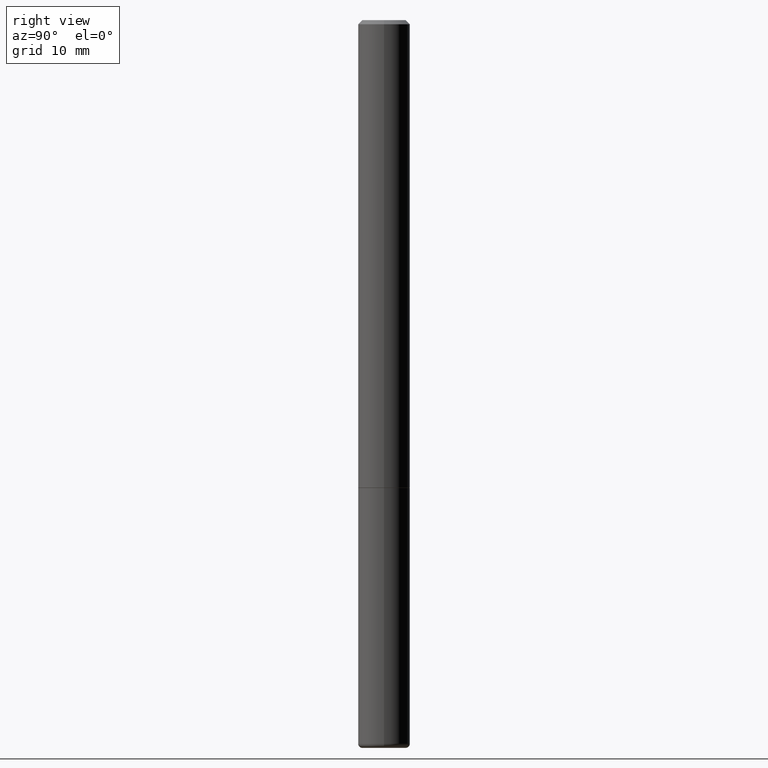
[diagram: clean part render]
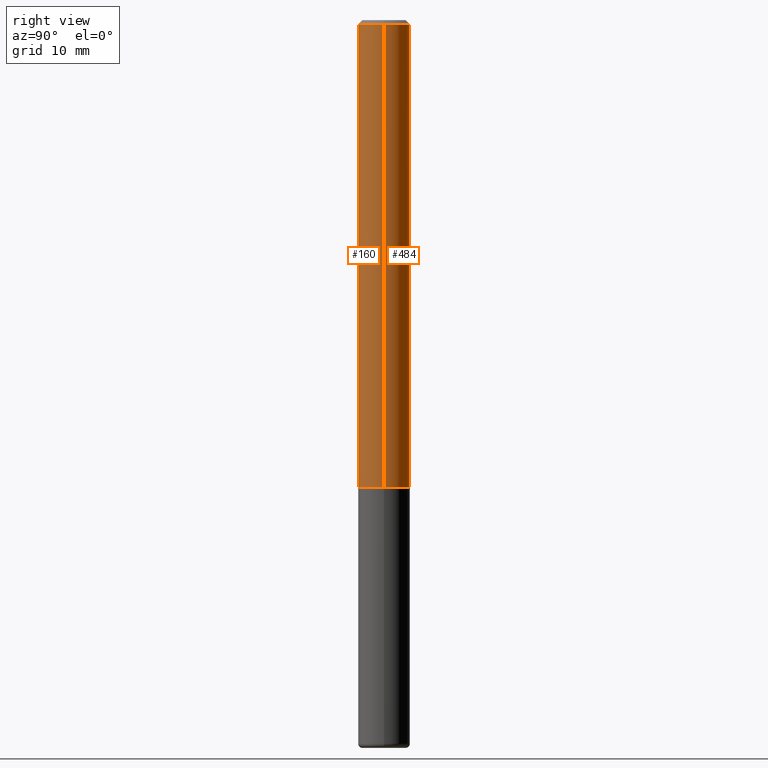
[diagram: same view with one multi-face feature highlighted, each face labeled with its STEP entity id]
A machine part, right view. The highlighted faces form ONE feature: a constant-radius fillet chain: 2 tangent blend faces with common blend radius 3.175 mm. The faces share edges in the B-rep.
Their STEP definitions:
[1] entity #160 (Cylinder):
#16 = EDGE_LOOP ( 'NONE', ( #41, #174, #159, #275 ) ) ;
#24 = VECTOR ( 'NONE', #490, 39.37007874015748143 ) ;
#32 = CIRCLE ( 'NONE', #72, 0.1250000000000000278 ) ;
#41 = ORIENTED_EDGE ( 'NONE', *, *, #77, .F. ) ;
#59 = CARTESIAN_POINT ( 'NONE',  ( -0.1250000000000000278, -3.072907159217412699E-15, -2.248999999999999222 ) ) ;
#72 = AXIS2_PLACEMENT_3D ( 'NONE', #449, #444, #331 ) ;
#76 = DIRECTION ( 'NONE',  ( 1.000000000000000000, -6.982962677686265922E-15, 0.000000000000000000 ) ) ;
#77 = EDGE_CURVE ( 'NONE', #354, #139, #334, .T. ) ;
#82 = CIRCLE ( 'NONE', #213, 0.1249999999999993477 ) ;
#91 = VECTOR ( 'NONE', #223, 39.37007874015748143 ) ;
#109 = DIRECTION ( 'NONE',  ( 1.000000000000000000, -6.982962677686266711E-15, 4.876176775795935793E-29 ) ) ;
#139 = VERTEX_POINT ( 'NONE', #291 ) ;
#142 = CYLINDRICAL_SURFACE ( 'NONE', #471, 0.1249999999999996947 ) ;
#159 = ORIENTED_EDGE ( 'NONE', *, *, #188, .T. ) ;
#160 = ADVANCED_FACE ( 'NONE', ( #332 ), #142, .T. ) ;
#168 = VERTEX_POINT ( 'NONE', #264 ) ;
#174 = ORIENTED_EDGE ( 'NONE', *, *, #378, .T. ) ;
#188 = EDGE_CURVE ( 'NONE', #168, #194, #424, .T. ) ;
#194 = VERTEX_POINT ( 'NONE', #270 ) ;
#213 = AXIS2_PLACEMENT_3D ( 'NONE', #385, #347, #76 ) ;
#223 = DIRECTION ( 'NONE',  ( -2.445468806185136877E-29, 3.491481338843145188E-15, 1.000000000000000000 ) ) ;
#264 = CARTESIAN_POINT ( 'NONE',  ( 0.1250000000000000278, -8.725211865769015625E-15, -2.248999999999999222 ) ) ;
#270 = CARTESIAN_POINT ( 'NONE',  ( 0.1249999999999993477, -9.273918764983004048E-16, -0.02000000000000014266 ) ) ;
#275 = ORIENTED_EDGE ( 'NONE', *, *, #487, .F. ) ;
#291 = CARTESIAN_POINT ( 'NONE',  ( -0.1249999999999993477, 8.030407079339153075E-16, -0.02000000000000014266 ) ) ;
#299 = DIRECTION ( 'NONE',  ( -2.445468806185136597E-29, 3.491481338843145583E-15, 1.000000000000000000 ) ) ;
#331 = DIRECTION ( 'NONE',  ( 1.000000000000000000, -6.982962677686269077E-15, 0.000000000000000000 ) ) ;
#332 = FACE_OUTER_BOUND ( 'NONE', #16, .T. ) ;
#334 = LINE ( 'NONE', #446, #91 ) ;
#347 = DIRECTION ( 'NONE',  ( -2.445468806185136597E-29, 3.491481338843145583E-15, 1.000000000000000000 ) ) ;
#354 = VERTEX_POINT ( 'NONE', #59 ) ;
#378 = EDGE_CURVE ( 'NONE', #354, #168, #32, .T. ) ;
#385 = CARTESIAN_POINT ( 'NONE',  ( 4.890937612370307315E-31, -6.982962677686340913E-17, -0.02000000000000014266 ) ) ;
#419 = CARTESIAN_POINT ( 'NONE',  ( 0.1249999999999996947, -8.728703347107811695E-16, 6.095220969744905027E-30 ) ) ;
#424 = LINE ( 'NONE', #419, #24 ) ;
#444 = DIRECTION ( 'NONE',  ( -2.445468806185136597E-29, 3.491481338843145583E-15, 1.000000000000000000 ) ) ;
#446 = CARTESIAN_POINT ( 'NONE',  ( -0.1249999999999996947, 8.881784197001230630E-16, -6.148668862818616813E-30 ) ) ;
#449 = CARTESIAN_POINT ( 'NONE',  ( 5.499859345110370619E-29, -7.852341531058232286E-15, -2.248999999999999222 ) ) ;
#471 = AXIS2_PLACEMENT_3D ( 'NONE', #486, #299, #109 ) ;
#486 = CARTESIAN_POINT ( 'NONE',  ( 0.000000000000000000, 0.000000000000000000, 0.000000000000000000 ) ) ;
#487 = EDGE_CURVE ( 'NONE', #139, #194, #82, .T. ) ;
#490 = DIRECTION ( 'NONE',  ( -2.445468806185136877E-29, 3.491481338843145188E-15, 1.000000000000000000 ) ) ;
[2] entity #484 (Cylinder):
#3 = FACE_OUTER_BOUND ( 'NONE', #368, .T. ) ;
#24 = VECTOR ( 'NONE', #490, 39.37007874015748143 ) ;
#59 = CARTESIAN_POINT ( 'NONE',  ( -0.1250000000000000278, -3.072907159217412699E-15, -2.248999999999999222 ) ) ;
#77 = EDGE_CURVE ( 'NONE', #354, #139, #334, .T. ) ;
#80 = ORIENTED_EDGE ( 'NONE', *, *, #188, .F. ) ;
#91 = VECTOR ( 'NONE', #223, 39.37007874015748143 ) ;
#115 = CIRCLE ( 'NONE', #402, 0.1250000000000000278 ) ;
#123 = ORIENTED_EDGE ( 'NONE', *, *, #460, .T. ) ;
#132 = DIRECTION ( 'NONE',  ( 1.000000000000000000, -6.982962677686265922E-15, 0.000000000000000000 ) ) ;
#139 = VERTEX_POINT ( 'NONE', #291 ) ;
#144 = AXIS2_PLACEMENT_3D ( 'NONE', #480, #263, #132 ) ;
#148 = CARTESIAN_POINT ( 'NONE',  ( 5.499859345110370619E-29, -7.852341531058232286E-15, -2.248999999999999222 ) ) ;
#168 = VERTEX_POINT ( 'NONE', #264 ) ;
#185 = DIRECTION ( 'NONE',  ( 1.000000000000000000, -6.982962677686266711E-15, 4.876176775795935793E-29 ) ) ;
#187 = CIRCLE ( 'NONE', #144, 0.1249999999999993477 ) ;
#188 = EDGE_CURVE ( 'NONE', #168, #194, #424, .T. ) ;
#194 = VERTEX_POINT ( 'NONE', #270 ) ;
#198 = DIRECTION ( 'NONE',  ( -2.445468806185136597E-29, 3.491481338843145583E-15, 1.000000000000000000 ) ) ;
#214 = ORIENTED_EDGE ( 'NONE', *, *, #362, .F. ) ;
#223 = DIRECTION ( 'NONE',  ( -2.445468806185136877E-29, 3.491481338843145188E-15, 1.000000000000000000 ) ) ;
#235 = DIRECTION ( 'NONE',  ( -2.445468806185136597E-29, 3.491481338843145583E-15, 1.000000000000000000 ) ) ;
#245 = AXIS2_PLACEMENT_3D ( 'NONE', #453, #198, #185 ) ;
#263 = DIRECTION ( 'NONE',  ( -2.445468806185136597E-29, 3.491481338843145583E-15, 1.000000000000000000 ) ) ;
#264 = CARTESIAN_POINT ( 'NONE',  ( 0.1250000000000000278, -8.725211865769015625E-15, -2.248999999999999222 ) ) ;
#270 = CARTESIAN_POINT ( 'NONE',  ( 0.1249999999999993477, -9.273918764983004048E-16, -0.02000000000000014266 ) ) ;
#291 = CARTESIAN_POINT ( 'NONE',  ( -0.1249999999999993477, 8.030407079339153075E-16, -0.02000000000000014266 ) ) ;
#334 = LINE ( 'NONE', #446, #91 ) ;
#337 = DIRECTION ( 'NONE',  ( 1.000000000000000000, -6.982962677686269077E-15, 0.000000000000000000 ) ) ;
#354 = VERTEX_POINT ( 'NONE', #59 ) ;
#362 = EDGE_CURVE ( 'NONE', #194, #139, #187, .T. ) ;
#366 = ORIENTED_EDGE ( 'NONE', *, *, #77, .T. ) ;
#368 = EDGE_LOOP ( 'NONE', ( #123, #366, #214, #80 ) ) ;
#383 = CYLINDRICAL_SURFACE ( 'NONE', #245, 0.1249999999999996947 ) ;
#402 = AXIS2_PLACEMENT_3D ( 'NONE', #148, #235, #337 ) ;
#419 = CARTESIAN_POINT ( 'NONE',  ( 0.1249999999999996947, -8.728703347107811695E-16, 6.095220969744905027E-30 ) ) ;
#424 = LINE ( 'NONE', #419, #24 ) ;
#446 = CARTESIAN_POINT ( 'NONE',  ( -0.1249999999999996947, 8.881784197001230630E-16, -6.148668862818616813E-30 ) ) ;
#453 = CARTESIAN_POINT ( 'NONE',  ( 0.000000000000000000, 0.000000000000000000, 0.000000000000000000 ) ) ;
#460 = EDGE_CURVE ( 'NONE', #168, #354, #115, .T. ) ;
#480 = CARTESIAN_POINT ( 'NONE',  ( 4.890937612370307315E-31, -6.982962677686340913E-17, -0.02000000000000014266 ) ) ;
#484 = ADVANCED_FACE ( 'NONE', ( #3 ), #383, .T. ) ;
#490 = DIRECTION ( 'NONE',  ( -2.445468806185136877E-29, 3.491481338843145188E-15, 1.000000000000000000 ) ) ;